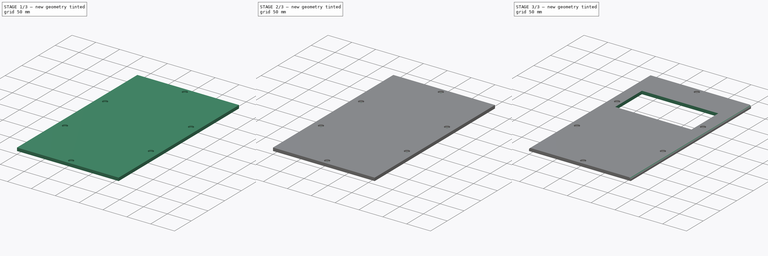
[diagram: build sequence overview — one tinted view per stage of 3, left to right]
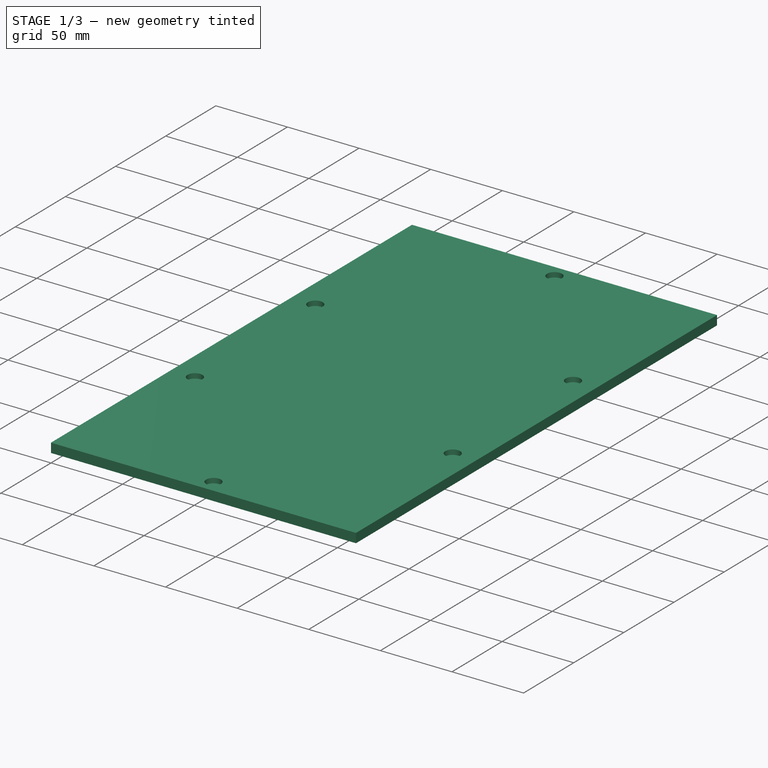
[diagram: stage 1 of 3 — iso view after this stage's code; geometry added in this stage tinted green]
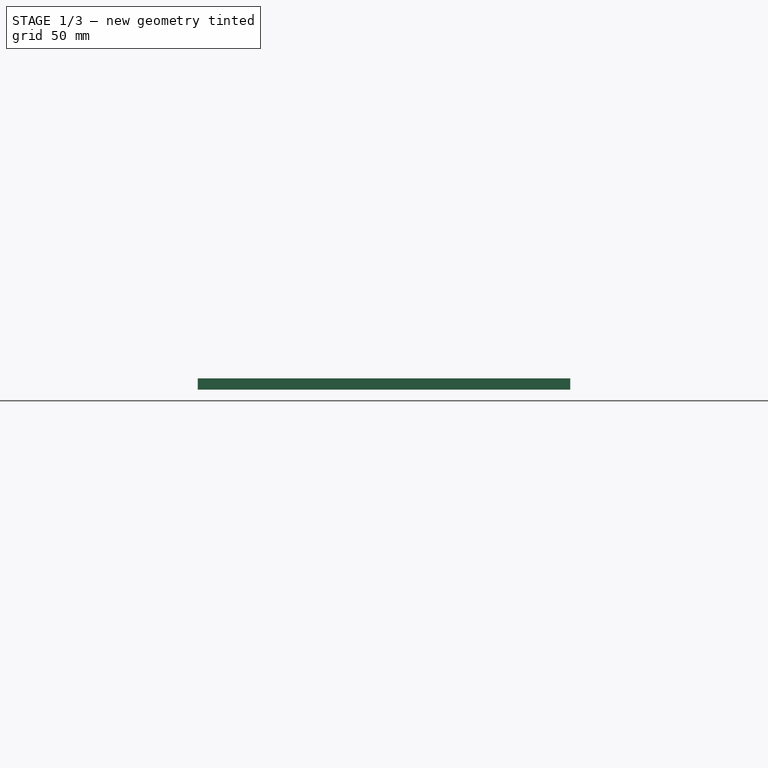
[diagram: stage 1 of 3 — front view after this stage's code; geometry added in this stage tinted green]
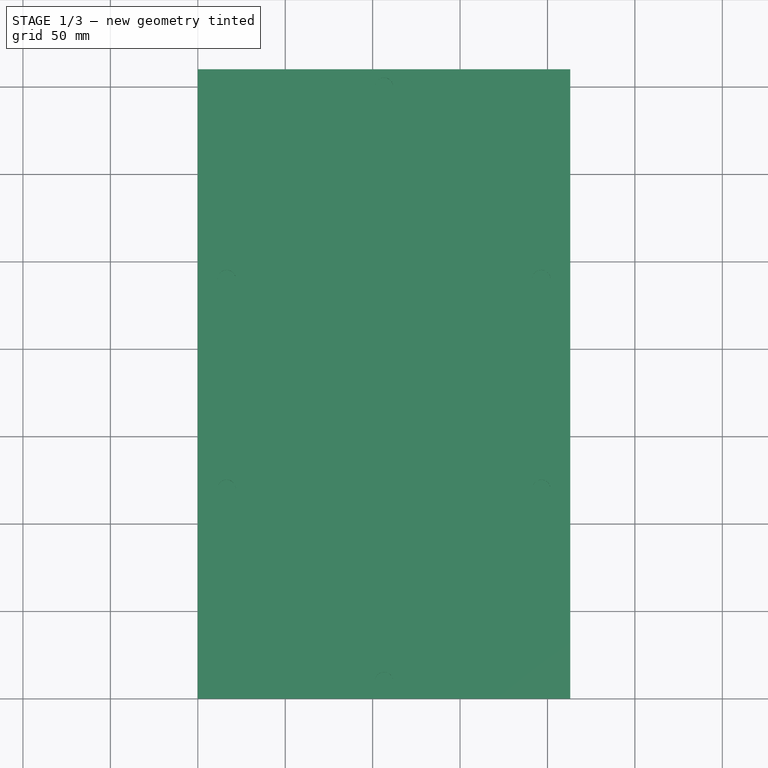
[diagram: stage 1 of 3 — top view after this stage's code; geometry added in this stage tinted green]
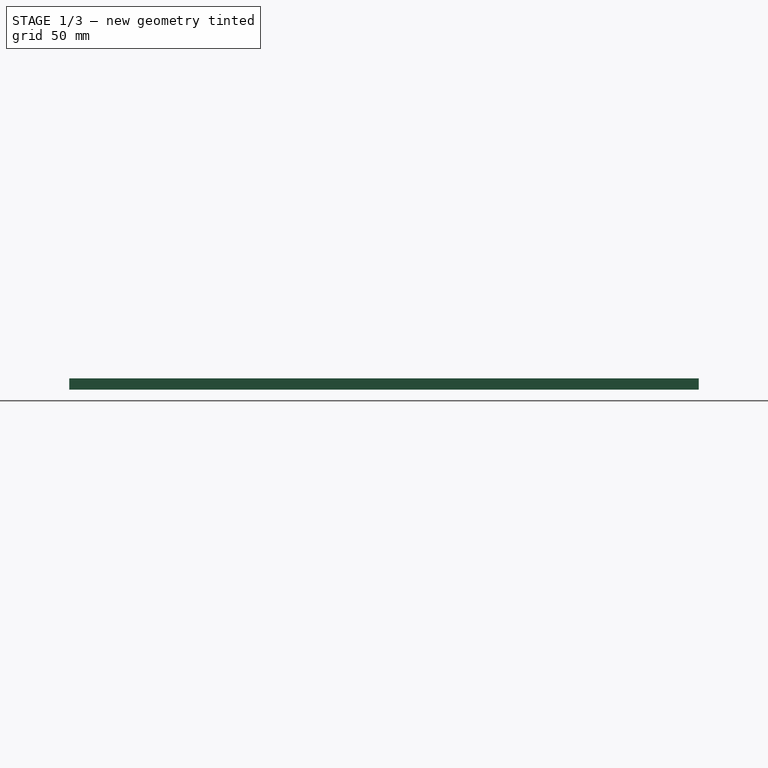
[diagram: stage 1 of 3 — right view after this stage's code; geometry added in this stage tinted green]
FCSTD DOCUMENT  (FreeCAD 0.17R9796 (Git))
Label: frontbackNG2b_ifmount
License: All rights reserved
LicenseURL: http://en.wikipedia.org/wiki/All_rights_reserved
objects: Sketcher::SketchObject×4, PartDesign::Pocket×3, PartDesign::Pad×1, PartDesign::Fillet×1, PartDesign::Body×1
note: 14 computed .brp shape members not serialized (recipe doc carries the construction recipe); baked Part::Feature solids carry a one-line shape summary decoded from their .brp

FEATURE [Sketcher::SketchObject] Sketch
  MapMode = 5
  Support = -> [XY_Plane]
  sketch-geometry (4):
    g0: LineSegment StartX=0 StartY=360 StartZ=0 EndX=213 EndY=360 EndZ=0
    g1: LineSegment StartX=213 StartY=360 StartZ=0 EndX=213 EndY=0 EndZ=0
    g2: LineSegment StartX=213 StartY=0 StartZ=0 EndX=0 EndY=0 EndZ=0
    g3: LineSegment StartX=0 StartY=0 StartZ=0 EndX=0 EndY=360 EndZ=0
  constraints (11):
    c: Coincident(g0,g1)
    c: Coincident(g1,g2)
    c: Coincident(g2,g3)
    c: Coincident(g3,g0)
    c: Horizontal(g0)
    c: Horizontal(g2)
    c: Vertical(g1)
    c: Vertical(g3)
    c: Coincident(g2,g-1)
    c: DistanceY(g3,g3) = 360
    c: DistanceX(g2,g2) = 213
FEATURE [PartDesign::Pad] Pad
  Length = 6.5
  Length2 = 100
  Profile = -> Sketch
  Type = 0
FEATURE [Sketcher::SketchObject] Sketch001
  MapMode = 5
  Placement = pos=(0,0,6.5) rot=(0,0,1;0rad)
  Support = -> [Pad]
  sketch-geometry (6):
    g0: Circle CenterX=106.5 CenterY=350 CenterZ=0 NormalX=0 NormalY=0 NormalZ=1 Radius=5.2
    g1: Circle CenterX=16.5 CenterY=240 CenterZ=0 NormalX=0 NormalY=0 NormalZ=1 Radius=5.2
    g2: Circle CenterX=16.5 CenterY=120 CenterZ=0 NormalX=0 NormalY=0 NormalZ=1 Radius=5.2
    g3: Circle CenterX=196.5 CenterY=240 CenterZ=0 NormalX=0 NormalY=0 NormalZ=1 Radius=5.2
    g4: Circle CenterX=196.5 CenterY=120 CenterZ=0 NormalX=0 NormalY=0 NormalZ=1 Radius=5.2
    g5: Circle CenterX=106.5 CenterY=10 CenterZ=0 NormalX=0 NormalY=0 NormalZ=1 Radius=5.2
  constraints (18):
    c: DistanceY(g-1,g5) = 10
    c: DistanceY(g-1,g0) = 350
    c: DistanceX(g-1,g2) = 16.5
    c: DistanceX(g2,g1) = 0
    c: DistanceX(g-1,g4) = 196.5
    c: DistanceX(g3,g4) = 0
    c: DistanceX(g-1,g5) = 106.5
    c: DistanceX(g0,g5) = 0
    c: DistanceY(g-1,g2) = 120
    c: DistanceY(g2,g1) = 120
    c: DistanceY(g2,g4) = 0
    c: DistanceY(g1,g3) = 0
    c: Radius(g5) = 5.2
    c: Equal(g5,g2)
    c: Equal(g5,g1)
    c: Equal(g5,g0)
    c: Equal(g5,g3)
    c: Equal(g5,g4)
FEATURE [PartDesign::Pocket] Pocket
  BaseFeature = -> Pad
  Length = 3.4
  Profile = -> Sketch001
  Type = 0
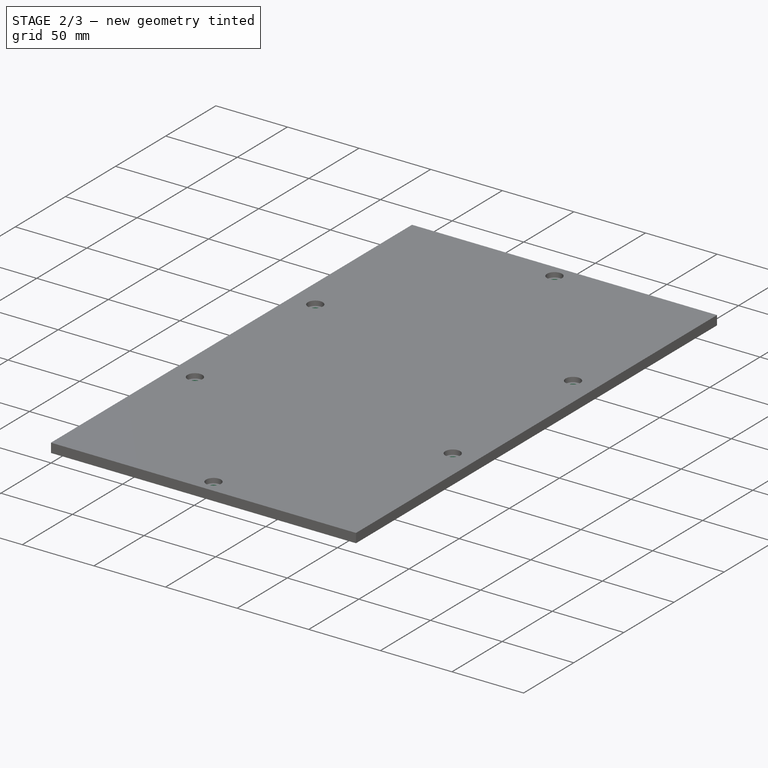
[diagram: stage 2 of 3 — iso view after this stage's code; geometry added in this stage tinted green]
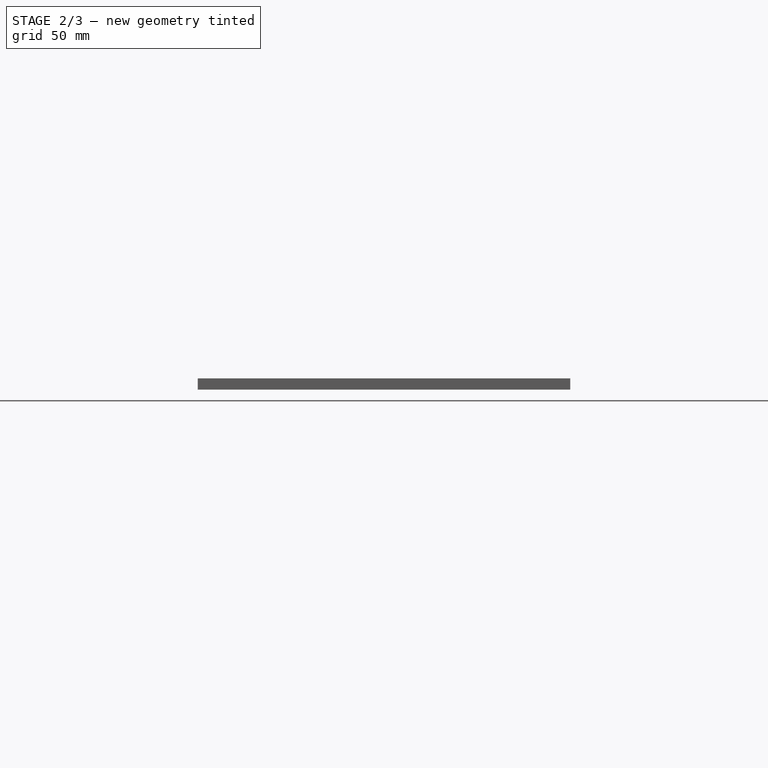
[diagram: stage 2 of 3 — front view after this stage's code; geometry added in this stage tinted green]
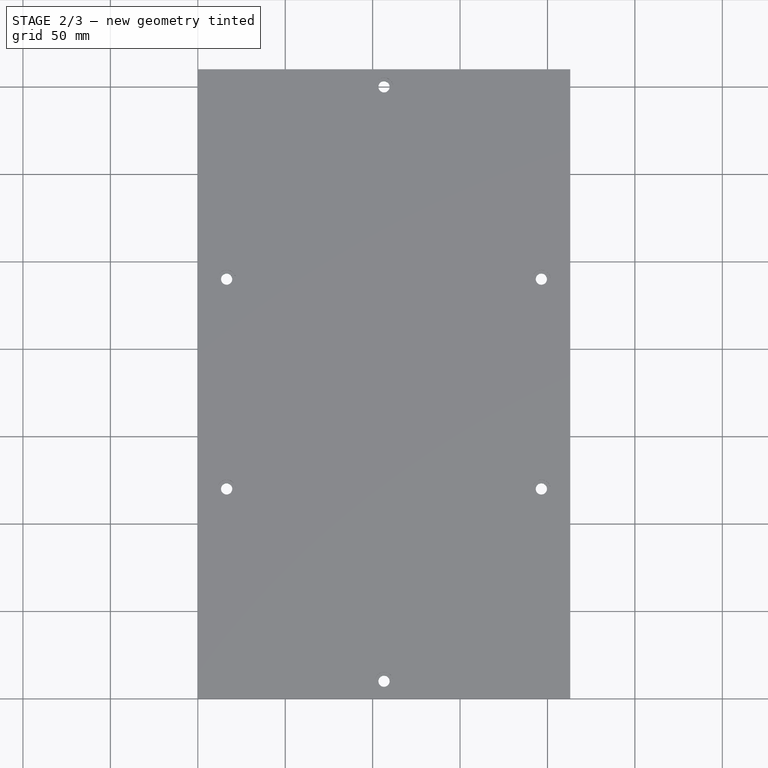
[diagram: stage 2 of 3 — top view after this stage's code; geometry added in this stage tinted green]
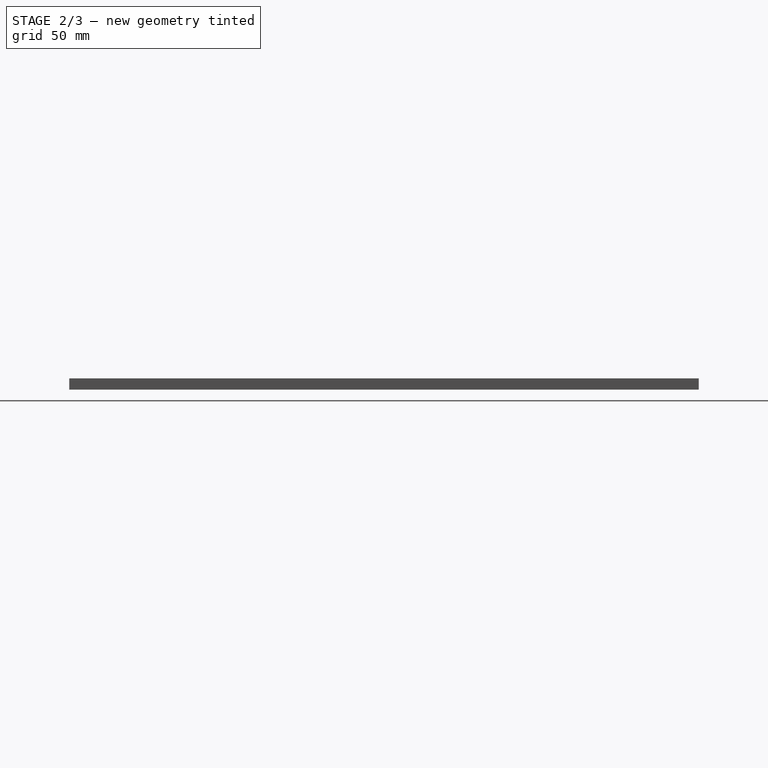
[diagram: stage 2 of 3 — right view after this stage's code; geometry added in this stage tinted green]
FEATURE [Sketcher::SketchObject] Sketch002
  MapMode = 5
  Placement = pos=(0,0,3.1) rot=(0,0,1;0rad)
  Support = -> [Pocket]
  sketch-geometry (6):
    g0: Circle CenterX=106.5 CenterY=350 CenterZ=0 NormalX=0 NormalY=0 NormalZ=1 Radius=3.2
    g1: Circle CenterX=16.5 CenterY=240 CenterZ=0 NormalX=0 NormalY=0 NormalZ=1 Radius=3.2
    g2: Circle CenterX=16.5 CenterY=120 CenterZ=0 NormalX=0 NormalY=0 NormalZ=1 Radius=3.2
    g3: Circle CenterX=196.5 CenterY=240 CenterZ=0 NormalX=0 NormalY=0 NormalZ=1 Radius=3.2
    g4: Circle CenterX=196.5 CenterY=120 CenterZ=0 NormalX=0 NormalY=0 NormalZ=1 Radius=3.2
    g5: Circle CenterX=106.5 CenterY=10 CenterZ=0 NormalX=0 NormalY=0 NormalZ=1 Radius=3.2
  constraints (18):
    c: DistanceX(g-1,g5) = 106.5
    c: DistanceX(g0,g5) = 0
    c: DistanceY(g-1,g5) = 10
    c: DistanceY(g-1,g0) = 350
    c: DistanceX(g-1,g2) = 16.5
    c: DistanceX(g1,g2) = 0
    c: DistanceX(g-1,g4) = 196.5
    c: DistanceX(g3,g4) = 0
    c: DistanceY(g-1,g2) = 120
    c: DistanceY(g2,g1) = 120
    c: DistanceY(g1,g3) = 0
    c: DistanceY(g4,g2) = 0
    c: Radius(g5) = 3.2
    c: Equal(g5,g2)
    c: Equal(g5,g1)
    c: Equal(g5,g0)
    c: Equal(g5,g3)
    c: Equal(g5,g4)
FEATURE [PartDesign::Pocket] Pocket001
  BaseFeature = -> Pocket
  Length = 3.1
  Profile = -> Sketch002
  Type = 0
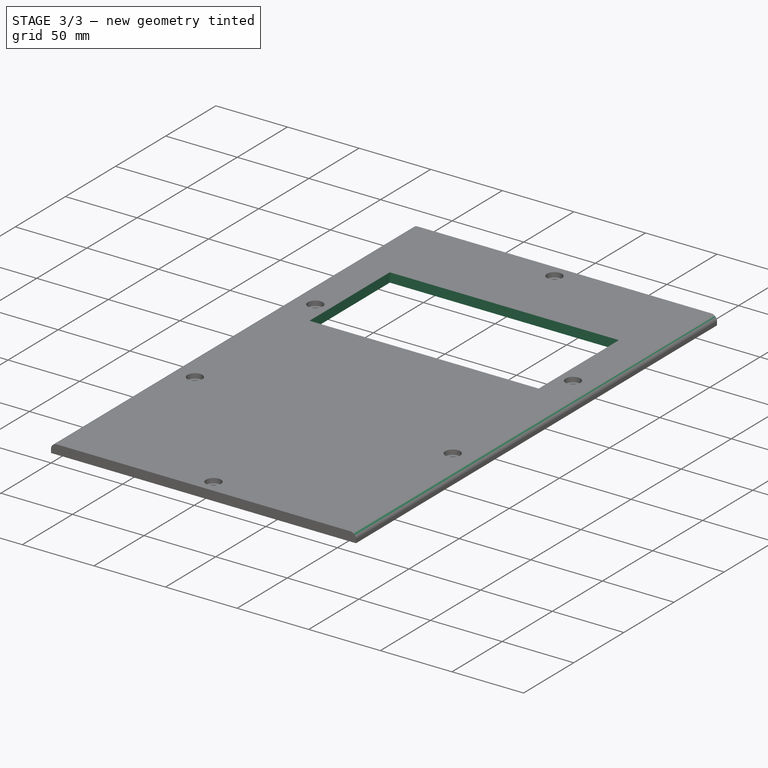
[diagram: stage 3 of 3 — iso view after this stage's code; geometry added in this stage tinted green]
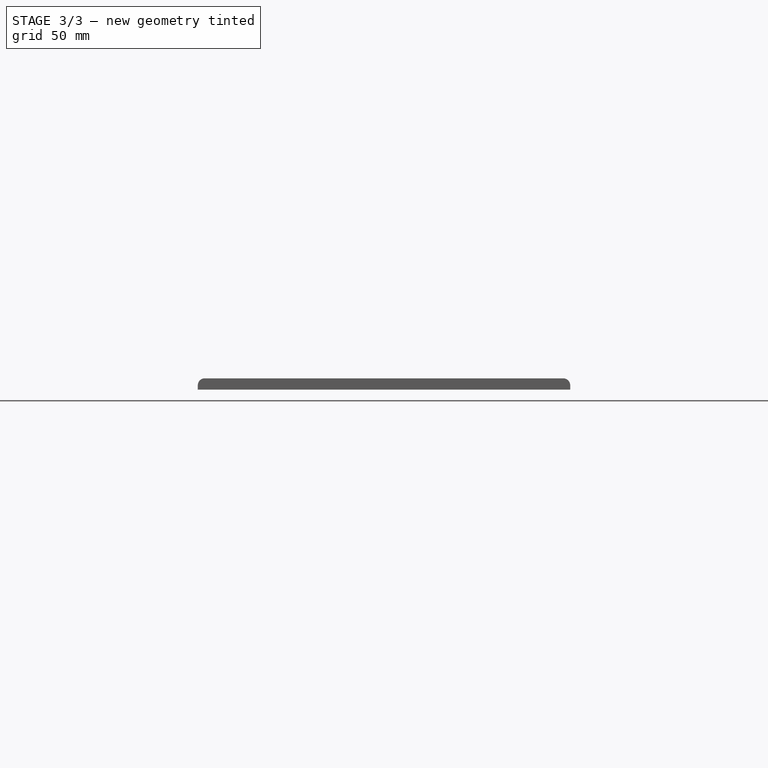
[diagram: stage 3 of 3 — front view after this stage's code; geometry added in this stage tinted green]
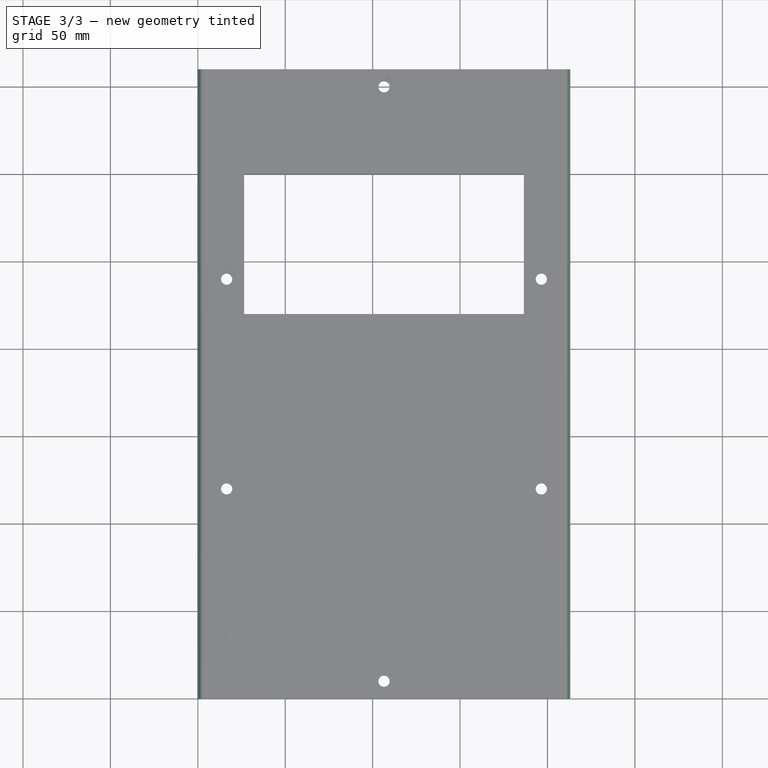
[diagram: stage 3 of 3 — top view after this stage's code; geometry added in this stage tinted green]
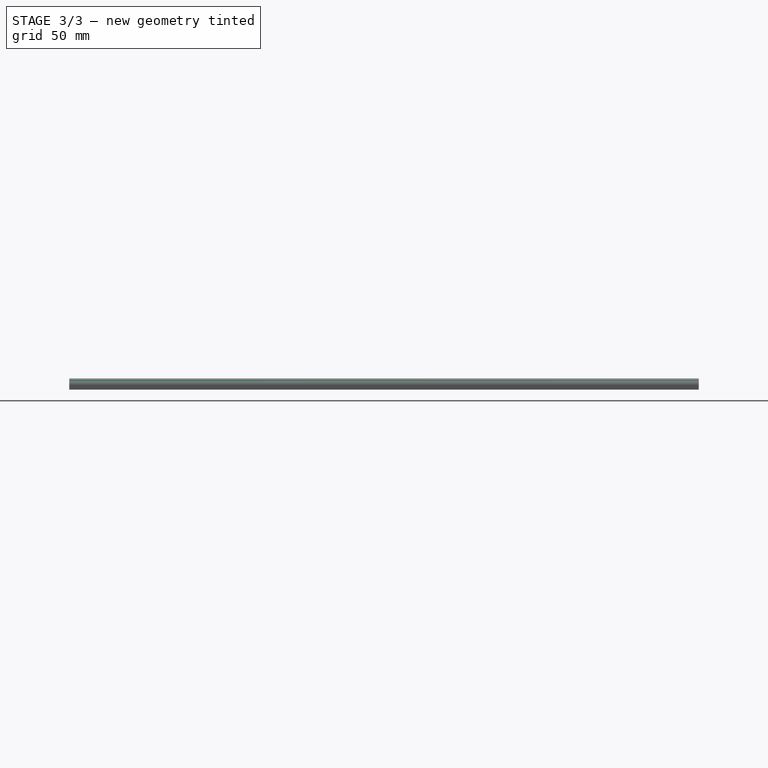
[diagram: stage 3 of 3 — right view after this stage's code; geometry added in this stage tinted green]
FEATURE [PartDesign::Fillet] Fillet
  Base = -> Pocket001 [Edge10,Edge7]
  BaseFeature = -> Pocket001
  Radius = 4
FEATURE [Sketcher::SketchObject] Sketch003
  MapMode = 5
  Placement = pos=(0,0,6.5) rot=(0,0,1;0rad)
  Support = -> [Fillet]
  sketch-geometry (4):
    g0: LineSegment StartX=26.5 StartY=300 StartZ=0 EndX=186.5 EndY=300 EndZ=0
    g1: LineSegment StartX=186.5 StartY=300 StartZ=0 EndX=186.5 EndY=220 EndZ=0
    g2: LineSegment StartX=186.5 StartY=220 StartZ=0 EndX=26.5 EndY=220 EndZ=0
    g3: LineSegment StartX=26.5 StartY=220 StartZ=0 EndX=26.5 EndY=300 EndZ=0
  constraints (12):
    c: Coincident(g0,g1)
    c: Coincident(g1,g2)
    c: Coincident(g2,g3)
    c: Coincident(g3,g0)
    c: Horizontal(g0)
    c: Horizontal(g2)
    c: Vertical(g1)
    c: Vertical(g3)
    c: DistanceX(g2,g2) = 160
    c: DistanceY(g3,g3) = 80
    c: DistanceX(g-1,g2) = 26.5
    c: DistanceY(g-1,g2) = 220
FEATURE [PartDesign::Pocket] Pocket002
  BaseFeature = -> Fillet
  Length = 6.5
  Profile = -> Sketch003
  Type = 0
FEATURE [PartDesign::Body] Body
  Group = -> [Sketch,Pad,Sketch001,Pocket,Sketch002,Pocket001,Fillet,Sketch003,Pocket002]
  Origin = -> BodyOrigin
  Tip = -> Pocket002
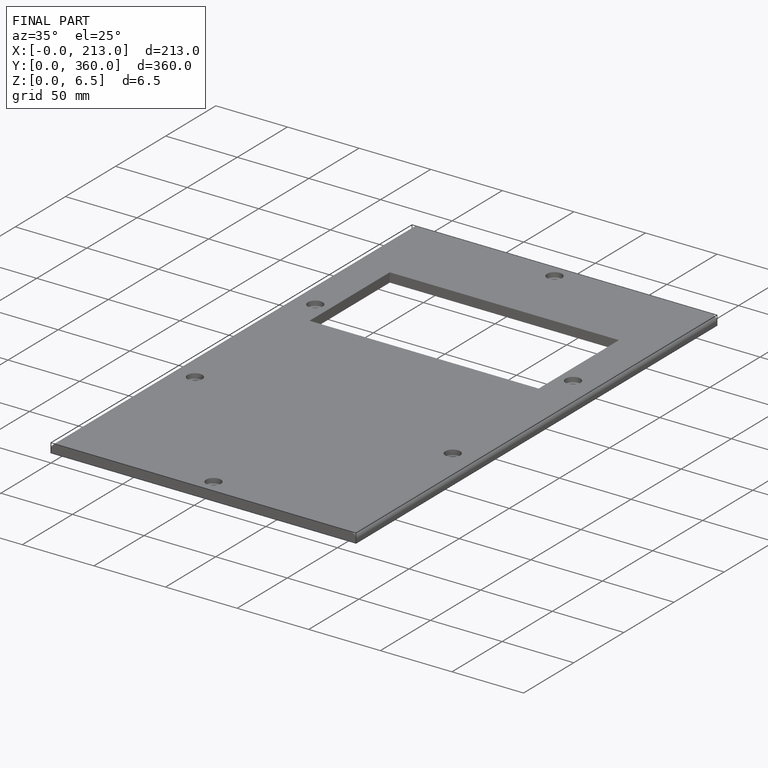
[diagram: finished part — iso view with bounding-box wireframe]
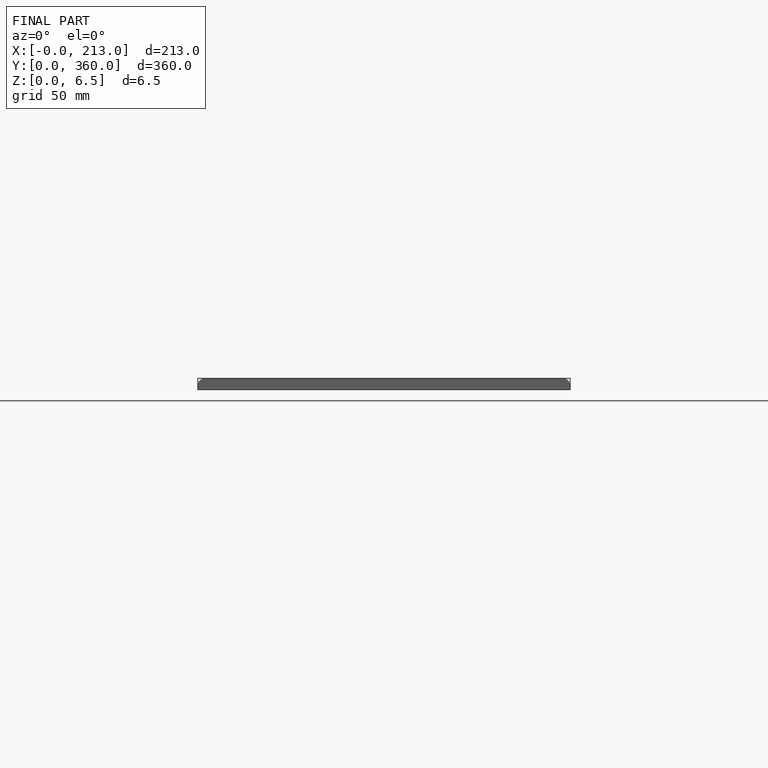
[diagram: finished part — front view with bounding-box wireframe]
